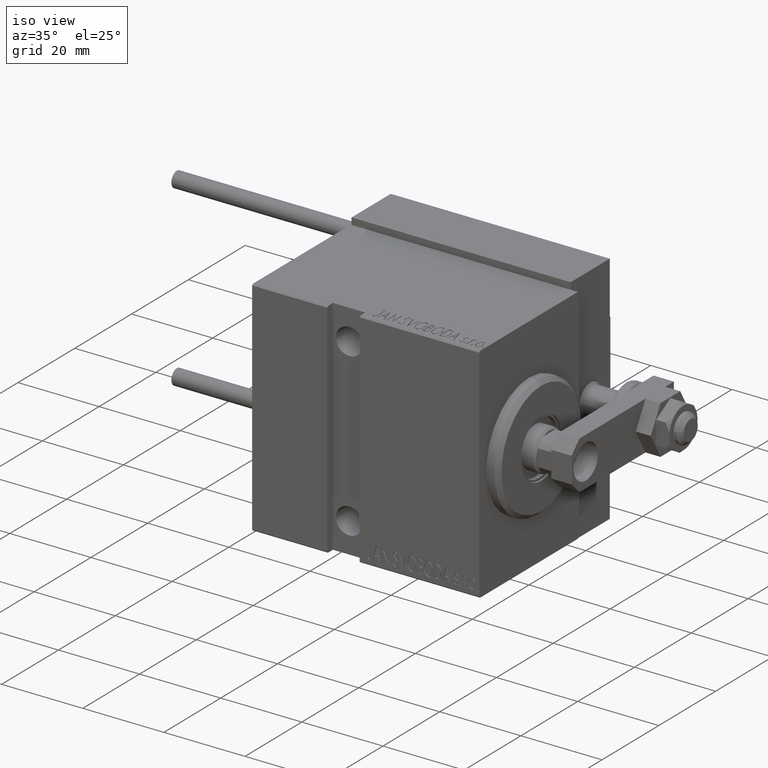
[diagram: clean part render]
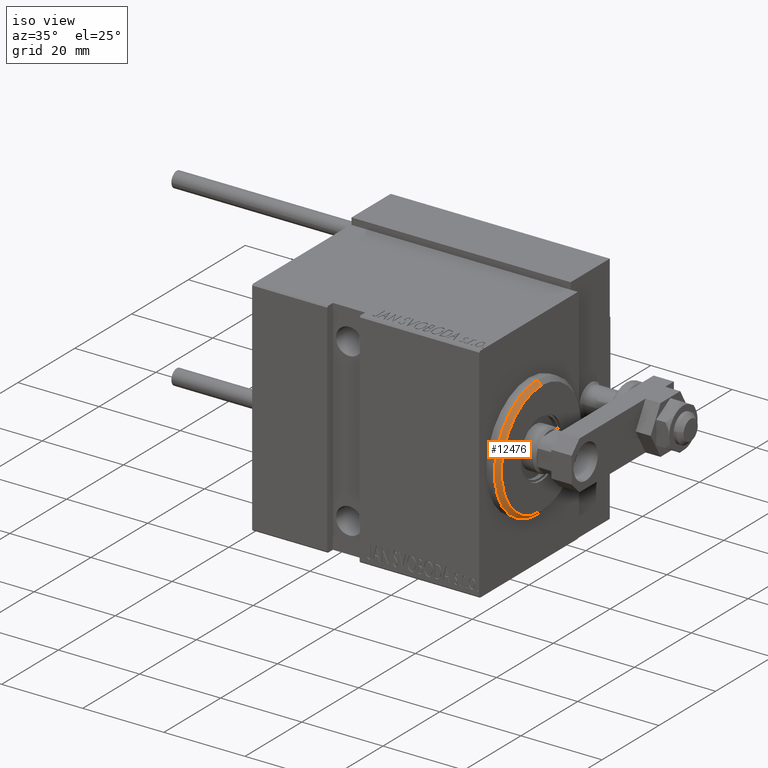
[diagram: same view with one face highlighted and labeled with its STEP entity id]
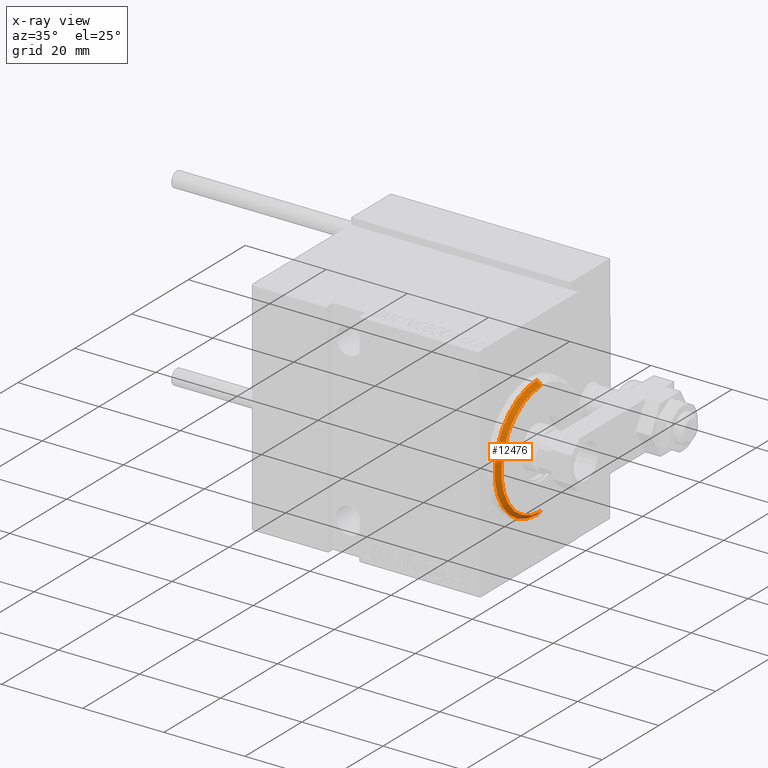
[diagram: x-ray of the same camera — body ghosted, the highlighted face saturated]
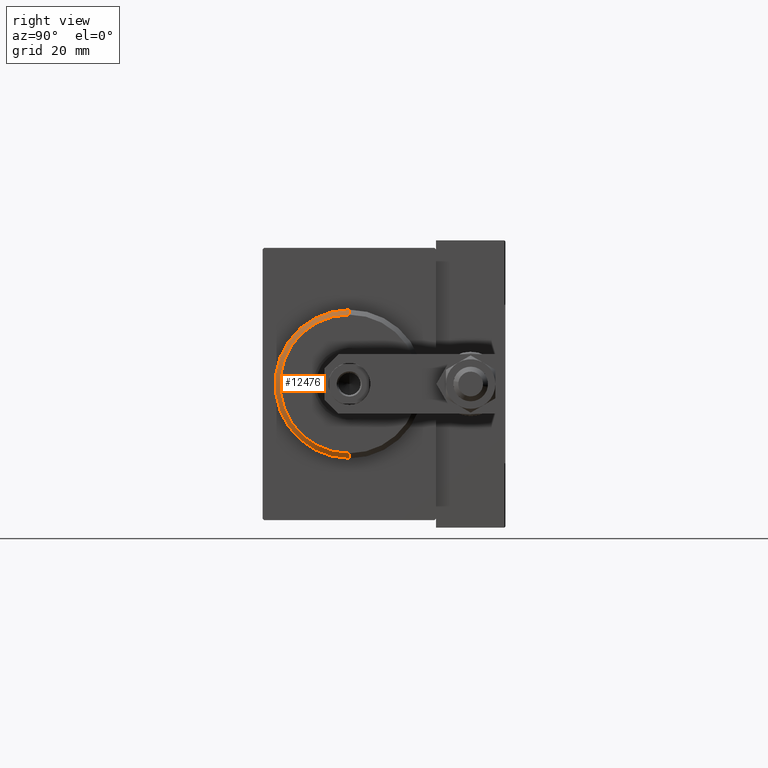
[diagram: same view with one face highlighted and labeled with its STEP entity id]
A machine part, iso view. The second image highlights one B-rep face of the part: STEP entity #12476.
The next image is the same camera in x-ray: the body ghosted, the highlighted face saturated — about 0% of this face is hidden behind the body in this view.
A second angle (right view) of the same face is appended — the face is thin or edge-on in the first view.
In plain terms, the highlighted conical surface has half-angle 45 deg.
Its self-contained STEP definition (entity closure, byte-faithful):
#845 = CARTESIAN_POINT ( 'NONE',  ( 3.000000000000000000, 1.714505518806293257E-15, -13.99999999999998934 ) ) ;
#1718 = CARTESIAN_POINT ( 'NONE',  ( 3.000000000000000000, 0.000000000000000000, 0.000000000000000000 ) ) ;
#1804 = VERTEX_POINT ( 'NONE', #13131 ) ;
#4635 = LINE ( 'NONE', #845, #15513 ) ;
#4670 = CARTESIAN_POINT ( 'NONE',  ( 1.999999999999988676, 0.000000000000000000, 15.00000000000000000 ) ) ;
#6169 = CARTESIAN_POINT ( 'NONE',  ( 3.000000000000000000, 0.000000000000000000, 13.99999999999998934 ) ) ;
#6340 = CARTESIAN_POINT ( 'NONE',  ( 1.999999999999988676, 1.836970198721029589E-15, -15.00000000000000000 ) ) ;
#8285 = DIRECTION ( 'NONE',  ( -1.000000000000000000, 0.000000000000000000, 0.000000000000000000 ) ) ;
#8539 = LINE ( 'NONE', #19411, #24026 ) ;
#9579 = ORIENTED_EDGE ( 'NONE', *, *, #32666, .F. ) ;
#12476 = ADVANCED_FACE ( 'NONE', ( #46149 ), #22715, .T. ) ;
#12863 = EDGE_CURVE ( 'NONE', #1804, #14384, #4635, .T. ) ;
#13131 = CARTESIAN_POINT ( 'NONE',  ( 3.000000000000000000, 1.775737858763661226E-15, -13.99999999999998934 ) ) ;
#14384 = VERTEX_POINT ( 'NONE', #6340 ) ;
#15513 = VECTOR ( 'NONE', #38765, 999.9999999999998863 ) ;
#16817 = EDGE_CURVE ( 'NONE', #30073, #1804, #32585, .T. ) ;
#19411 = CARTESIAN_POINT ( 'NONE',  ( 3.000000000000000000, 0.000000000000000000, 13.99999999999998934 ) ) ;
#19582 = ORIENTED_EDGE ( 'NONE', *, *, #16817, .F. ) ;
#19695 = AXIS2_PLACEMENT_3D ( 'NONE', #38380, #8285, #23200 ) ;
#20290 = AXIS2_PLACEMENT_3D ( 'NONE', #26967, #38823, #31002 ) ;
#21514 = ORIENTED_EDGE ( 'NONE', *, *, #12863, .F. ) ;
#22715 = CONICAL_SURFACE ( 'NONE', #20290, 13.99999999999998934, 0.7853981633974473908 ) ;
#23200 = DIRECTION ( 'NONE',  ( 0.000000000000000000, 0.000000000000000000, -1.000000000000000000 ) ) ;
#24026 = VECTOR ( 'NONE', #42672, 999.9999999999998863 ) ;
#25636 = VERTEX_POINT ( 'NONE', #4670 ) ;
#26967 = CARTESIAN_POINT ( 'NONE',  ( 3.000000000000000000, 0.000000000000000000, 0.000000000000000000 ) ) ;
#30073 = VERTEX_POINT ( 'NONE', #6169 ) ;
#31002 = DIRECTION ( 'NONE',  ( 0.000000000000000000, 0.000000000000000000, 1.000000000000000000 ) ) ;
#32312 = DIRECTION ( 'NONE',  ( 0.000000000000000000, 0.000000000000000000, -1.000000000000000000 ) ) ;
#32585 = CIRCLE ( 'NONE', #43061, 13.99999999999998934 ) ;
#32666 = EDGE_CURVE ( 'NONE', #14384, #25636, #41507, .T. ) ;
#34024 = EDGE_LOOP ( 'NONE', ( #21514, #19582, #40036, #9579 ) ) ;
#36606 = DIRECTION ( 'NONE',  ( 1.000000000000000000, -0.000000000000000000, 0.000000000000000000 ) ) ;
#38380 = CARTESIAN_POINT ( 'NONE',  ( 1.999999999999988676, 0.000000000000000000, 0.000000000000000000 ) ) ;
#38765 = DIRECTION ( 'NONE',  ( -0.7071067811865482389, 8.659560562354926695E-17, -0.7071067811865469066 ) ) ;
#38823 = DIRECTION ( 'NONE',  ( -1.000000000000000000, 0.000000000000000000, 0.000000000000000000 ) ) ;
#40036 = ORIENTED_EDGE ( 'NONE', *, *, #44864, .T. ) ;
#41507 = CIRCLE ( 'NONE', #19695, 15.00000000000000000 ) ;
#42672 = DIRECTION ( 'NONE',  ( -0.7071067811865482389, 0.000000000000000000, 0.7071067811865469066 ) ) ;
#43061 = AXIS2_PLACEMENT_3D ( 'NONE', #1718, #36606, #32312 ) ;
#44864 = EDGE_CURVE ( 'NONE', #30073, #25636, #8539, .T. ) ;
#46149 = FACE_OUTER_BOUND ( 'NONE', #34024, .T. ) ;